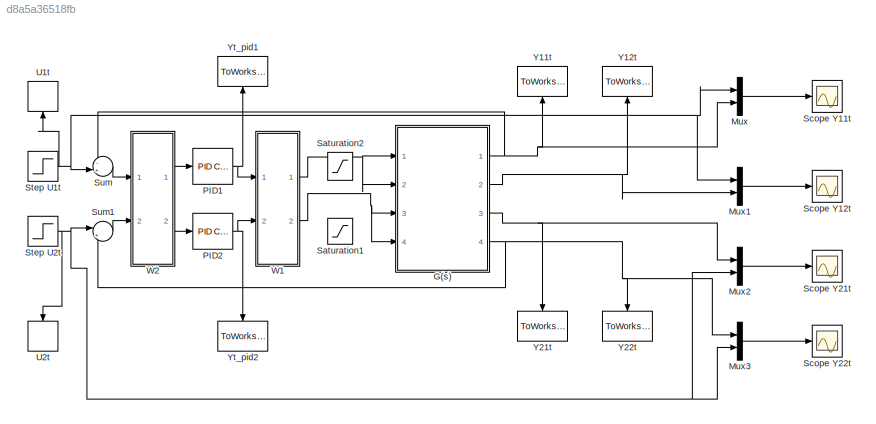
MODEL slx_d8a5a36518fb
KIND model
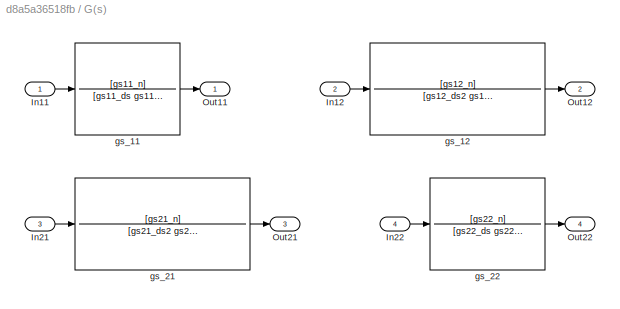
BLOCK [SubSystem] G(s)
  Ports = [4, 4]
  RequestExecContextInheritance = off
BLOCK [Inport] G(s)/In11
  IconDisplay = Port number
BLOCK [Inport] G(s)/In12
  IconDisplay = Port number
  Port = 2
BLOCK [Inport] G(s)/In21
  IconDisplay = Port number
  Port = 3
BLOCK [Inport] G(s)/In22
  IconDisplay = Port number
  Port = 4
BLOCK [Outport] G(s)/Out11
  IconDisplay = Port number
BLOCK [Outport] G(s)/Out12
  IconDisplay = Port number
  Port = 2
BLOCK [Outport] G(s)/Out21
  IconDisplay = Port number
  Port = 3
BLOCK [Outport] G(s)/Out22
  IconDisplay = Port number
  Port = 4
BLOCK [TransferFcn] G(s)/gs_11
  Denominator = [gs11_ds gs11_d]
  Numerator = [gs11_n]
BLOCK [TransferFcn] G(s)/gs_12
  Denominator = [gs12_ds2 gs12_ds gs12_d]
  Numerator = [gs12_n]
BLOCK [TransferFcn] G(s)/gs_21 
  Denominator = [gs21_ds2 gs21_ds gs21_d]
  Numerator = [gs21_n]
BLOCK [TransferFcn] G(s)/gs_22
  Denominator = [gs22_ds gs22_d]
  Numerator = [gs22_n]
BLOCK [Mux] Mux
  DisplayOption = bar
  Inputs = 2
  Ports = [2, 1]
BLOCK [Mux] Mux1
  DisplayOption = bar
  Inputs = 2
  Ports = [2, 1]
BLOCK [Mux] Mux2
  DisplayOption = bar
  Inputs = 2
  Ports = [2, 1]
BLOCK [Mux] Mux3
  DisplayOption = bar
  Inputs = 2
  Ports = [2, 1]
BLOCK [Reference] PID1  REF=simulink/Continuous/PID Controller
  AntiWindupMode = none
  Controller = PID
  D = Td1
  DOutDataTypeStr = Inherit: Inherit via internal rule
  DOutMax = []
  DOutMin = []
  DParamDataTypeStr = Inherit: Inherit via internal rule
  DParamMax = []
  DParamMin = []
  DifferentiatorICPrevScaledInput = 0
  DifferentiatorOutDataTypeStr = Inherit: Inherit via internal rule
  DifferentiatorOutMax = []
  DifferentiatorOutMin = []
  ExternalReset = none
  FilterContinuousStateAttributes = ''
  FilterMethod = Forward Euler
  FilterOutDataTypeStr = Inherit: Inherit via internal rule
  FilterOutMax = []
  FilterOutMin = []
  FilterRTWStateStorageClass = Auto
  FilterStateMustResolveToSignalObject = off
  Form = Parallel
  I = Ti1
  IOutDataTypeStr = Inherit: Inherit via internal rule
  IOutMax = []
  IOutMin = []
  IParamDataTypeStr = Inherit: Inherit via internal rule
  IParamMax = []
  IParamMin = []
  IgnoreLimit = off
  InitialConditionForFilter = 0
  InitialConditionForIntegrator = 0
  InitialConditionSource = internal
  IntegratorContinuousStateAttributes = ''
  IntegratorMethod = Forward Euler
  IntegratorOutDataTypeStr = Inherit: Inherit via internal rule
  IntegratorOutMax = []
  IntegratorOutMin = []
  IntegratorRTWStateStorageClass = Auto
  IntegratorStateMustResolveToSignalObject = off
  Kb = 1
  KbOutDataTypeStr = Inherit: Inherit via internal rule
  KbOutMax = []
  KbOutMin = []
  KbParamDataTypeStr = Inherit: Inherit via internal rule
  KbParamMax = []
  KbParamMin = []
  Kt = 1
  KtOutDataTypeStr = Inherit: Inherit via internal rule
  KtOutMax = []
  KtOutMin = []
  KtParamDataTypeStr = Inherit: Inherit via internal rule
  KtParamMax = []
  KtParamMin = []
  LimitOutput = off
  LinearizeAsGain = on
  LockScale = off
  LowerSaturationLimit = -inf
  N = 100
  NOutDataTypeStr = Inherit: Inherit via internal rule
  NOutMax = []
  NOutMin = []
  NParamDataTypeStr = Inherit: Inherit via internal rule
  NParamMax = []
  NParamMin = []
  P = Kp1
  POutDataTypeStr = Inherit: Inherit via internal rule
  POutMax = []
  POutMin = []
  PParamDataTypeStr = Inherit: Inherit via internal rule
  PParamMax = []
  PParamMin = []
  Ports = [1, 1]
  RndMeth = Floor
  SampleTime = -1
  SaturateOnIntegerOverflow = off
  SaturationOutDataTypeStr = Inherit: Same as input
  SaturationOutMax = []
  SaturationOutMin = []
  SourceBlock = simulink/Continuous/PID Controller
  SourceType = PID 1dof
  SumAccumDataTypeStr = Inherit: Inherit via internal rule
  SumDAccumDataTypeStr = Inherit: Inherit via internal rule
  SumDOutDataTypeStr = Inherit: Inherit via internal rule
  SumDOutMax = []
  SumDOutMin = []
  SumI1AccumDataTypeStr = Inherit: Inherit via internal rule
  SumI1OutDataTypeStr = Inherit: Inherit via internal rule
  SumI1OutMax = []
  SumI1OutMin = []
  SumI2AccumDataTypeStr = Inherit: Inherit via internal rule
  SumI2OutDataTypeStr = Inherit: Inherit via internal rule
  SumI2OutMax = []
  SumI2OutMin = []
  SumI3AccumDataTypeStr = Inherit: Inherit via internal rule
  SumI3OutDataTypeStr = Inherit: Inherit via internal rule
  SumI3OutMax = []
  SumI3OutMin = []
  SumOutDataTypeStr = Inherit: Inherit via internal rule
  SumOutMax = []
  SumOutMin = []
  TimeDomain = Continuous-time
  TrackingMode = off
  UpperSaturationLimit = inf
  UseFilter = on
  ZeroCross = on
BLOCK [Reference] PID2  REF=simulink/Continuous/PID Controller
  AntiWindupMode = none
  Controller = PID
  D = Td2
  DOutDataTypeStr = Inherit: Inherit via internal rule
  DOutMax = []
  DOutMin = []
  DParamDataTypeStr = Inherit: Inherit via internal rule
  DParamMax = []
  DParamMin = []
  DifferentiatorICPrevScaledInput = 0
  DifferentiatorOutDataTypeStr = Inherit: Inherit via internal rule
  DifferentiatorOutMax = []
  DifferentiatorOutMin = []
  ExternalReset = none
  FilterContinuousStateAttributes = ''
  FilterMethod = Forward Euler
  FilterOutDataTypeStr = Inherit: Inherit via internal rule
  FilterOutMax = []
  FilterOutMin = []
  FilterRTWStateStorageClass = Auto
  FilterStateMustResolveToSignalObject = off
  Form = Parallel
  I = Ti1
  IOutDataTypeStr = Inherit: Inherit via internal rule
  IOutMax = []
  IOutMin = []
  IParamDataTypeStr = Inherit: Inherit via internal rule
  IParamMax = []
  IParamMin = []
  IgnoreLimit = off
  InitialConditionForFilter = 0
  InitialConditionForIntegrator = 0
  InitialConditionSource = internal
  IntegratorContinuousStateAttributes = ''
  IntegratorMethod = Forward Euler
  IntegratorOutDataTypeStr = Inherit: Inherit via internal rule
  IntegratorOutMax = []
  IntegratorOutMin = []
  IntegratorRTWStateStorageClass = Auto
  IntegratorStateMustResolveToSignalObject = off
  Kb = 1
  KbOutDataTypeStr = Inherit: Inherit via internal rule
  KbOutMax = []
  KbOutMin = []
  KbParamDataTypeStr = Inherit: Inherit via internal rule
  KbParamMax = []
  KbParamMin = []
  Kt = 1
  KtOutDataTypeStr = Inherit: Inherit via internal rule
  KtOutMax = []
  KtOutMin = []
  KtParamDataTypeStr = Inherit: Inherit via internal rule
  KtParamMax = []
  KtParamMin = []
  LimitOutput = off
  LinearizeAsGain = on
  LockScale = off
  LowerSaturationLimit = -inf
  N = 100
  NOutDataTypeStr = Inherit: Inherit via internal rule
  NOutMax = []
  NOutMin = []
  NParamDataTypeStr = Inherit: Inherit via internal rule
  NParamMax = []
  NParamMin = []
  P = Kp2
  POutDataTypeStr = Inherit: Inherit via internal rule
  POutMax = []
  POutMin = []
  PParamDataTypeStr = Inherit: Inherit via internal rule
  PParamMax = []
  PParamMin = []
  Ports = [1, 1]
  RndMeth = Floor
  SampleTime = -1
  SaturateOnIntegerOverflow = off
  SaturationOutDataTypeStr = Inherit: Same as input
  SaturationOutMax = []
  SaturationOutMin = []
  SourceBlock = simulink/Continuous/PID Controller
  SourceType = PID 1dof
  SumAccumDataTypeStr = Inherit: Inherit via internal rule
  SumDAccumDataTypeStr = Inherit: Inherit via internal rule
  SumDOutDataTypeStr = Inherit: Inherit via internal rule
  SumDOutMax = []
  SumDOutMin = []
  SumI1AccumDataTypeStr = Inherit: Inherit via internal rule
  SumI1OutDataTypeStr = Inherit: Inherit via internal rule
  SumI1OutMax = []
  SumI1OutMin = []
  SumI2AccumDataTypeStr = Inherit: Inherit via internal rule
  SumI2OutDataTypeStr = Inherit: Inherit via internal rule
  SumI2OutMax = []
  SumI2OutMin = []
  SumI3AccumDataTypeStr = Inherit: Inherit via internal rule
  SumI3OutDataTypeStr = Inherit: Inherit via internal rule
  SumI3OutMax = []
  SumI3OutMin = []
  SumOutDataTypeStr = Inherit: Inherit via internal rule
  SumOutMax = []
  SumOutMin = []
  TimeDomain = Continuous-time
  TrackingMode = off
  UpperSaturationLimit = inf
  UseFilter = on
  ZeroCross = on
BLOCK [Saturate] Saturation1
  InputPortMap = u0
  LowerLimit = 0
  Ports = [1, 1]
  UpperLimit = 10
BLOCK [Saturate] Saturation2
  InputPortMap = u0
  LowerLimit = 0
  Ports = [1, 1]
  UpperLimit = 10
BLOCK [Scope] Scope Y11t
  Floating = off
  LegendLocations = 0.89961     0.88659     0.07233     0.04959
  NumInputPorts = 1
  Ports = [1]
  ShowLegends = on
  TimeRange = 0.02452107279693294
  YMax = 2.8
  YMin = 1
BLOCK [Scope] Scope Y12t
  Floating = off
  LegendLocations = 0.89961     0.88659     0.07233     0.04959
  NumInputPorts = 1
  Ports = [1]
  SaveName = ScopeData1
  ShowLegends = on
  TimeRange = 0.02452107279693294
  YMax = 0.01264600000000007
  YMin = 0.01232600000000006
BLOCK [Scope] Scope Y21t
  Floating = off
  NumInputPorts = 1
  Ports = [1]
  SaveName = ScopeData2
  ShowLegends = on
  TimeRange = 500
  YMax = 1
  YMin = 0
BLOCK [Scope] Scope Y22t
  Floating = off
  NumInputPorts = 1
  Ports = [1]
  SaveName = ScopeData3
  ShowLegends = on
  TimeRange = 0.02452107279693294
  YMax = 0.01264600000000007
  YMin = 0.01232600000000006
BLOCK [Step] Step U1t
  After = ut1_final_value
  Before = ut1_initial_value
  SampleTime = ut1_sample_time
  Time = ut1_step_time
BLOCK [Step] Step U2t
  After = ut2_final_value
  Before = ut2_initial_value
  SampleTime = ut2_sample_time
  Time = ut2_step_time
BLOCK [Sum] Sum
  IconShape = round
  Inputs = -+|
  Ports = [2, 1]
BLOCK [Sum] Sum1
  IconShape = round
  Inputs = |+-
  Ports = [2, 1]
BLOCK [ToWorkspace] U1t
  FixptAsFi = on
  MaxDataPoints = inf
  Ports = [1]
  SampleTime = -1
  Save2DSignal = 2-D array (concatenate along first dimension)
  VariableName = U1t1
BLOCK [ToWorkspace] U2t
  FixptAsFi = on
  MaxDataPoints = inf
  Ports = [1]
  SampleTime = -1
  Save2DSignal = 2-D array (concatenate along first dimension)
  VariableName = U2t2
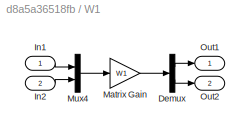
BLOCK [SubSystem] W1
  Ports = [2, 2]
  RequestExecContextInheritance = off
BLOCK [Demux] W1/Demux
  Outputs = 2
  Ports = [1, 2]
BLOCK [Inport] W1/In1
  IconDisplay = Port number
BLOCK [Inport] W1/In2
  IconDisplay = Port number
  Port = 2
BLOCK [Gain] W1/Matrix Gain
  Gain = W1
  Multiplication = Matrix(K*u)
BLOCK [Mux] W1/Mux4
  DisplayOption = bar
  Inputs = 2
  Ports = [2, 1]
BLOCK [Outport] W1/Out1
  IconDisplay = Port number
BLOCK [Outport] W1/Out2
  IconDisplay = Port number
  Port = 2
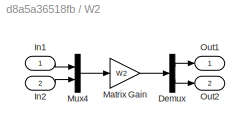
BLOCK [SubSystem] W2
  Ports = [2, 2]
  RequestExecContextInheritance = off
BLOCK [Demux] W2/Demux
  Outputs = 2
  Ports = [1, 2]
BLOCK [Inport] W2/In1
  IconDisplay = Port number
BLOCK [Inport] W2/In2
  IconDisplay = Port number
  Port = 2
BLOCK [Gain] W2/Matrix Gain
  Gain = W2
  Multiplication = Matrix(K*u)
BLOCK [Mux] W2/Mux4
  DisplayOption = bar
  Inputs = 2
  Ports = [2, 1]
BLOCK [Outport] W2/Out1
  IconDisplay = Port number
BLOCK [Outport] W2/Out2
  IconDisplay = Port number
  Port = 2
BLOCK [ToWorkspace] Y11t
  FixptAsFi = on
  MaxDataPoints = inf
  Ports = [1]
  SampleTime = -1
  Save2DSignal = 2-D array (concatenate along first dimension)
  VariableName = Yt_gs11
BLOCK [ToWorkspace] Y12t
  FixptAsFi = on
  MaxDataPoints = inf
  Ports = [1]
  SampleTime = -1
  Save2DSignal = 2-D array (concatenate along first dimension)
  VariableName = Yt_gs12
BLOCK [ToWorkspace] Y21t
  FixptAsFi = on
  MaxDataPoints = inf
  Ports = [1]
  SampleTime = -1
  Save2DSignal = 2-D array (concatenate along first dimension)
  VariableName = Yt_gs21
BLOCK [ToWorkspace] Y22t
  FixptAsFi = on
  MaxDataPoints = inf
  Ports = [1]
  SampleTime = -1
  Save2DSignal = 2-D array (concatenate along first dimension)
  VariableName = Yt_gs22
BLOCK [ToWorkspace] Yt_pid1
  FixptAsFi = on
  MaxDataPoints = inf
  Ports = [1]
  SampleTime = -1
  Save2DSignal = 2-D array (concatenate along first dimension)
  VariableName = Yt_pid1
BLOCK [ToWorkspace] Yt_pid2
  FixptAsFi = on
  MaxDataPoints = inf
  Ports = [1]
  SampleTime = -1
  Save2DSignal = 2-D array (concatenate along first dimension)
  VariableName = Yt_pid2
LINE G(s)/In11:1 -> G(s)/gs_11:1
LINE G(s)/In12:1 -> G(s)/gs_12:1
LINE G(s)/In21:1 -> G(s)/gs_21 :1
LINE G(s)/In22:1 -> G(s)/gs_22:1
LINE G(s)/gs_11:1 -> G(s)/Out11:1
LINE G(s)/gs_12:1 -> G(s)/Out12:1
LINE G(s)/gs_21 :1 -> G(s)/Out21:1
LINE G(s)/gs_22:1 -> G(s)/Out22:1
NET G(s):1 -> Mux:2, Sum:1, Y11t:1
NET G(s):2 -> Mux1:2, Y12t:1
NET G(s):3 -> Mux2:1, Y21t:1
NET G(s):4 -> Mux3:1, Sum1:2, Y22t:1
LINE Mux1:1 -> Scope Y12t:1
LINE Mux2:1 -> Scope Y21t:1
LINE Mux3:1 -> Scope Y22t:1
LINE Mux:1 -> Scope Y11t:1
NET PID1:1 -> W1:1, Yt_pid1:1
NET PID2:1 -> W1:2, Yt_pid2:1
NET Step U1t:1 -> Mux1:1, Mux:1, Sum:2, U1t:1
NET Step U2t:1 -> Mux2:2, Mux3:2, Sum1:1, U2t:1
LINE Sum1:1 -> W2:2
LINE Sum:1 -> W2:1
LINE W1/Demux:1 -> W1/Out1:1
LINE W1/Demux:2 -> W1/Out2:1
LINE W1/In1:1 -> W1/Mux4:1
LINE W1/In2:1 -> W1/Mux4:2
LINE W1/Matrix Gain:1 -> W1/Demux:1
LINE W1/Mux4:1 -> W1/Matrix Gain:1
NET W1:1 -> G(s):1, G(s):2
NET W1:2 -> G(s):3, G(s):4
LINE W2/Demux:1 -> W2/Out1:1
LINE W2/Demux:2 -> W2/Out2:1
LINE W2/In1:1 -> W2/Mux4:1
LINE W2/In2:1 -> W2/Mux4:2
LINE W2/Matrix Gain:1 -> W2/Demux:1
LINE W2/Mux4:1 -> W2/Matrix Gain:1
LINE W2:1 -> PID1:1
LINE W2:2 -> PID2:1
note: NET lines group one-source signal fan-out (src -> all destinations, sorted); 1:1 wires keep LINE
